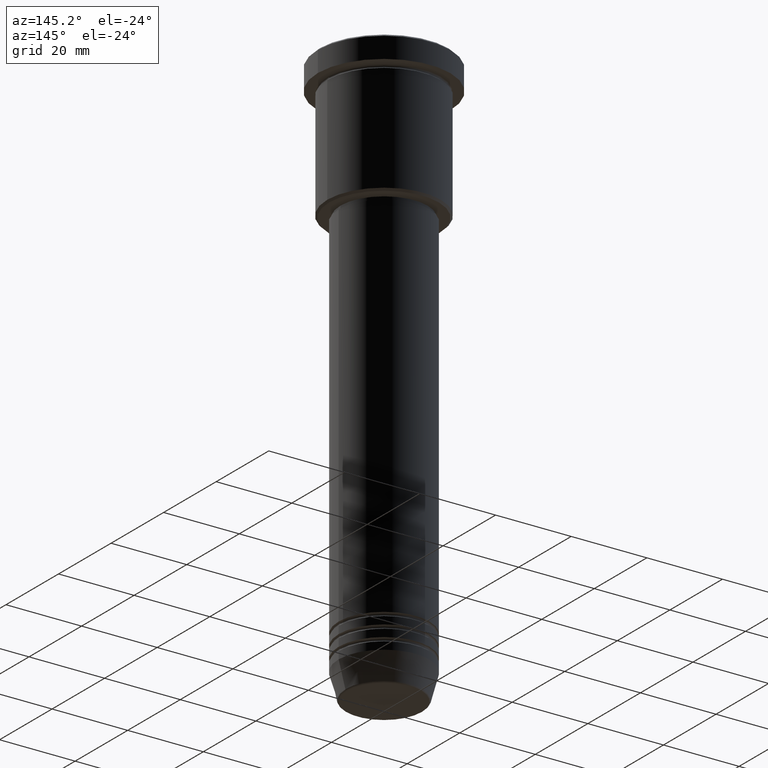
[diagram: clean part render]
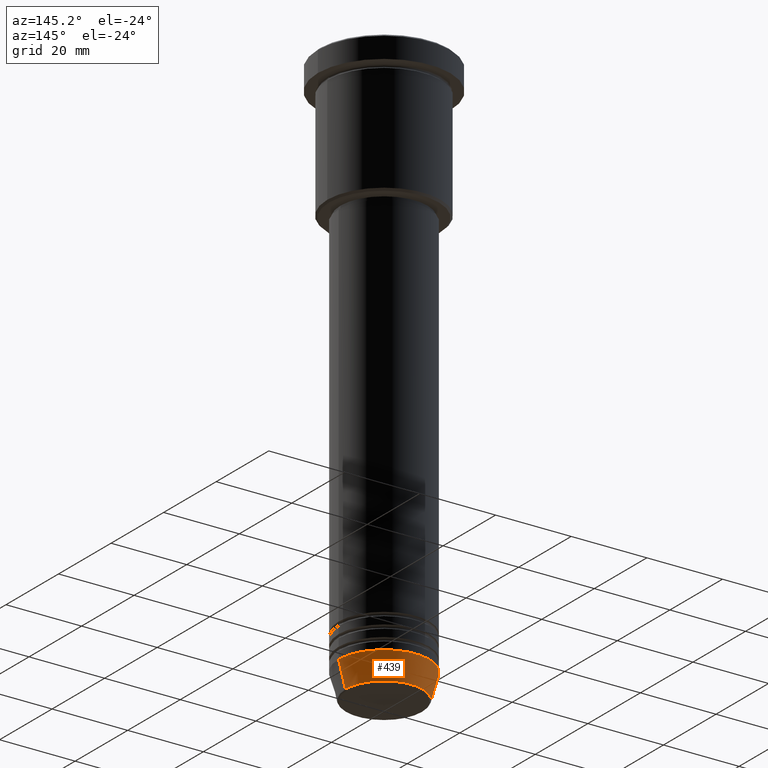
[diagram: same view with one face highlighted and labeled with its STEP entity id]
A machine part, auxiliary view. The second image highlights one B-rep face of the part: STEP entity #439.
In plain terms, the highlighted conical surface has half-angle 15 deg.
Its self-contained STEP definition (entity closure, byte-faithful):
#6 = CARTESIAN_POINT ( 'NONE',  ( 0.000000000000000000, 0.000000000000000000, -144.0000000000000284 ) ) ;
#40 = ORIENTED_EDGE ( 'NONE', *, *, #869, .T. ) ;
#67 = CARTESIAN_POINT ( 'NONE',  ( -12.00000000000000000, 1.469576158976823947E-15, -144.0000000000000284 ) ) ;
#82 = LINE ( 'NONE', #241, #699 ) ;
#95 = FACE_OUTER_BOUND ( 'NONE', #552, .T. ) ;
#138 = CARTESIAN_POINT ( 'NONE',  ( 0.000000000000000000, 0.000000000000000000, -144.0000000000000284 ) ) ;
#146 = VERTEX_POINT ( 'NONE', #685 ) ;
#173 = CARTESIAN_POINT ( 'NONE',  ( -10.22365507213719127, 1.360806402472382744E-15, -150.6294095225512706 ) ) ;
#181 = ORIENTED_EDGE ( 'NONE', *, *, #996, .T. ) ;
#220 = VERTEX_POINT ( 'NONE', #609 ) ;
#228 = CARTESIAN_POINT ( 'NONE',  ( 12.00000000000000000, 0.000000000000000000, -144.0000000000000284 ) ) ;
#241 = CARTESIAN_POINT ( 'NONE',  ( 12.00000000000000000, 0.000000000000000000, -144.0000000000000284 ) ) ;
#249 = AXIS2_PLACEMENT_3D ( 'NONE', #355, #457, #1034 ) ;
#308 = VERTEX_POINT ( 'NONE', #173 ) ;
#342 = EDGE_CURVE ( 'NONE', #220, #518, #82, .T. ) ;
#355 = CARTESIAN_POINT ( 'NONE',  ( 0.000000000000000000, 0.000000000000000000, -150.6294095225512706 ) ) ;
#365 = AXIS2_PLACEMENT_3D ( 'NONE', #138, #707, #1152 ) ;
#439 = ADVANCED_FACE ( 'NONE', ( #95 ), #913, .T. ) ;
#457 = DIRECTION ( 'NONE',  ( -0.000000000000000000, -0.000000000000000000, 1.000000000000000000 ) ) ;
#461 = CIRCLE ( 'NONE', #365, 12.00000000000000000 ) ;
#469 = DIRECTION ( 'NONE',  ( 1.000000000000000000, 0.000000000000000000, 0.000000000000000000 ) ) ;
#515 = DIRECTION ( 'NONE',  ( -0.2588190451025213501, 3.169619151431772337E-17, 0.9659258262890680902 ) ) ;
#518 = VERTEX_POINT ( 'NONE', #228 ) ;
#521 = CIRCLE ( 'NONE', #249, 10.22365507213719127 ) ;
#547 = DIRECTION ( 'NONE',  ( -0.000000000000000000, -0.000000000000000000, 1.000000000000000000 ) ) ;
#552 = EDGE_LOOP ( 'NONE', ( #40, #181, #941, #1015 ) ) ;
#577 = VECTOR ( 'NONE', #515, 1000.000000000000000 ) ;
#609 = CARTESIAN_POINT ( 'NONE',  ( 10.22365507213719127, 0.000000000000000000, -150.6294095225512706 ) ) ;
#685 = CARTESIAN_POINT ( 'NONE',  ( -12.00000000000000000, 1.469576158976823947E-15, -144.0000000000000284 ) ) ;
#699 = VECTOR ( 'NONE', #1177, 1000.000000000000000 ) ;
#707 = DIRECTION ( 'NONE',  ( -0.000000000000000000, -0.000000000000000000, 1.000000000000000000 ) ) ;
#869 = EDGE_CURVE ( 'NONE', #220, #308, #521, .T. ) ;
#876 = LINE ( 'NONE', #67, #577 ) ;
#913 = CONICAL_SURFACE ( 'NONE', #1142, 12.00000000000000000, 0.2617993877991500740 ) ;
#941 = ORIENTED_EDGE ( 'NONE', *, *, #1042, .F. ) ;
#996 = EDGE_CURVE ( 'NONE', #308, #146, #876, .T. ) ;
#1015 = ORIENTED_EDGE ( 'NONE', *, *, #342, .F. ) ;
#1034 = DIRECTION ( 'NONE',  ( 1.000000000000000000, 0.000000000000000000, 0.000000000000000000 ) ) ;
#1042 = EDGE_CURVE ( 'NONE', #518, #146, #461, .T. ) ;
#1142 = AXIS2_PLACEMENT_3D ( 'NONE', #6, #547, #469 ) ;
#1152 = DIRECTION ( 'NONE',  ( 1.000000000000000000, 0.000000000000000000, 0.000000000000000000 ) ) ;
#1177 = DIRECTION ( 'NONE',  ( 0.2588190451025213501, 0.000000000000000000, 0.9659258262890680902 ) ) ;